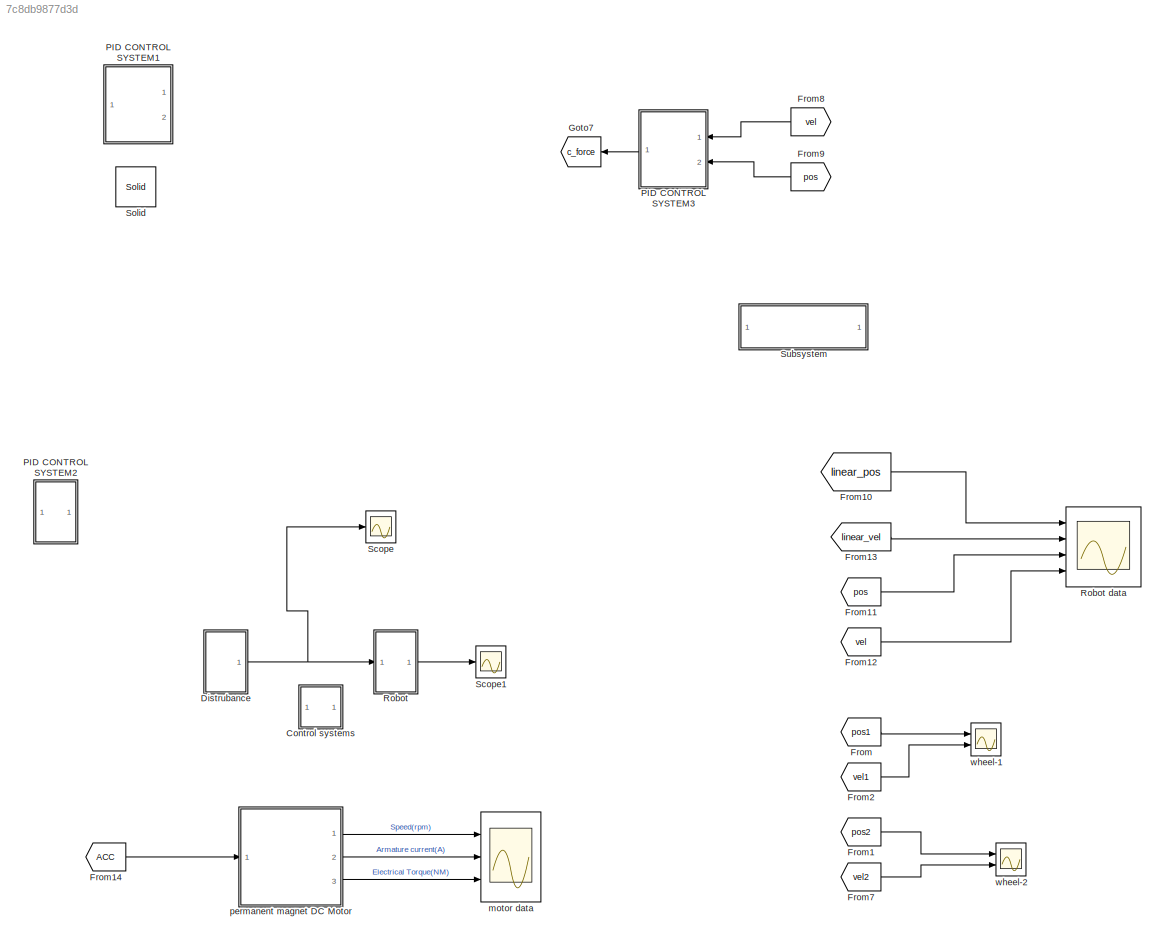
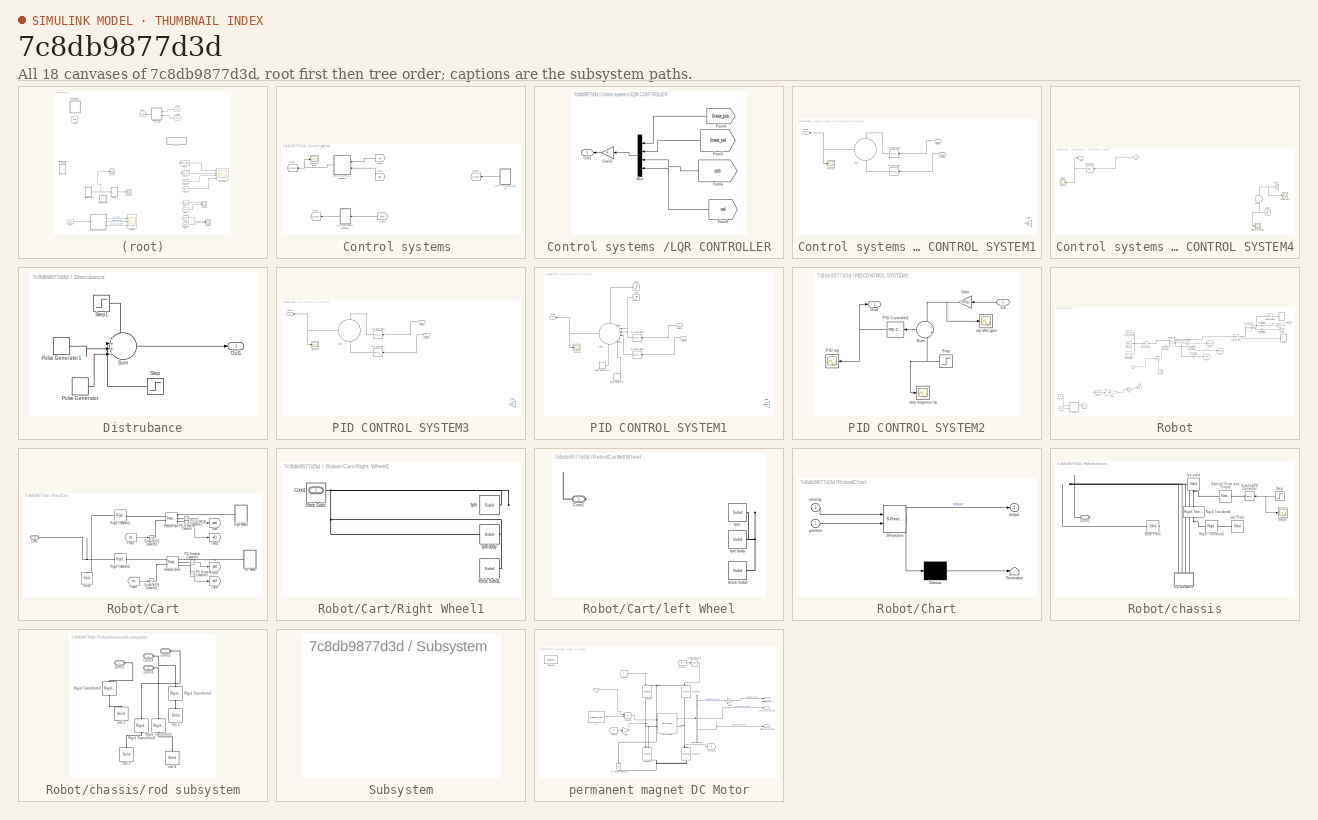
[diagram: thumbnail index - all 18 canvases of the model, root first then tree order]
MODEL slx_7c8db9877d3d
KIND model
CONFIG AbsTol = auto
CONFIG FixedStep = 2*10^-5
CONFIG MaxStep = auto
CONFIG MinStep = auto
CONFIG RelTol = 1e-3
CONFIG SampleTimeConstraint = Unconstrained
CONFIG Solver = VariableStepAuto
CONFIG SolverMode = Auto
CONFIG SolverName = VariableStepAuto
CONFIG StartTime = 0.0
CONFIG StopTime = 10
BLOCK [SubSystem] Control systems 
  Ports = []
  RequestExecContextInheritance = off
  Variant = off
BLOCK [From] Control systems /From1
  Commented = on
  GotoTag = vel
  TagVisibility = global
BLOCK [From] Control systems /From2
  Commented = on
  GotoTag = pos
  TagVisibility = global
BLOCK [From] Control systems /From4
  Commented = on
  GotoTag = pos
  TagVisibility = global
BLOCK [Goto] Control systems /Goto1
  Commented = on
  GotoTag = c_force
  TagVisibility = global
BLOCK [Goto] Control systems /Goto3
  Commented = on
  GotoTag = c_force
  TagVisibility = global
BLOCK [Goto] Control systems /Goto6
  GotoTag = c_force
  TagVisibility = global
BLOCK [SubSystem] Control systems /LQR CONTROLLER
  Ports = [0, 1]
  RequestExecContextInheritance = off
  Variant = off
BLOCK [From] Control systems /LQR CONTROLLER/From4
  GotoTag = linear_pos
  TagVisibility = global
BLOCK [From] Control systems /LQR CONTROLLER/From5
  GotoTag = linear_vel
  TagVisibility = global
BLOCK [From] Control systems /LQR CONTROLLER/From6
  GotoTag = pos
  TagVisibility = global
BLOCK [From] Control systems /LQR CONTROLLER/From8
  GotoTag = vel
  TagVisibility = global
BLOCK [Gain] Control systems /LQR CONTROLLER/Gain2
  Gain = K
  Multiplication = Matrix(K*u)
  OutDataTypeStr = Inherit: Inherit via internal rule
  ParamDataTypeStr = Inherit: Inherit via internal rule
  SaturateOnIntegerOverflow = off
BLOCK [Mux] Control systems /LQR CONTROLLER/Mux
  DisplayOption = bar
  Ports = [4, 1]
BLOCK [Outport] Control systems /LQR CONTROLLER/Out1
  IconDisplay = Port number
BLOCK [SubSystem] Control systems /PID CONTROL SYSTEM1
  Commented = on
  Ports = [2, 1]
  RequestExecContextInheritance = off
  Variant = off
BLOCK [Scope] Control systems /PID CONTROL SYSTEM1/	PID o//p
  Ports = [1]
  ScopeSpecificationString = Simulink.scopes.TimeScopeBlockCfg('CurrentConfiguration', extmgr.ConfigurationSet(extmgr.Configuration('Core','General UI',true),extmgr.Configuration('Core','Source UI',true),extmgr.Configuration('Sources','WiredSimulink',true),extmgr.Configuration('Visuals','Time Domain',true,'SerializedDisplays',{struct('MinYLimReal','-3135.24324','MaxYLimReal','3138.49141','YLabelReal','','MinYLimMag','  0.0000...<+1368ch>  <repeated x5 — deduplicated; at blocks: PID o/p>
BLOCK [Gain] Control systems /PID CONTROL SYSTEM1/Gain
  Commented = on
  Gain = 180/pi
  OutDataTypeStr = Inherit: Inherit via internal rule
  ParamDataTypeStr = Inherit: Inherit via internal rule
  SaturateOnIntegerOverflow = off
BLOCK [Reference] Control systems /PID CONTROL SYSTEM1/PID Controller1  REF=simulink/Continuous/PID Controller
  Ports = [1, 1]
  SourceBlock = simulink/Continuous/PID Controller
  SourceType = PID 1dof
BLOCK [Reference] Control systems /PID CONTROL SYSTEM1/PID Controller2  REF=simulink/Continuous/PID Controller
  Ports = [1, 1]
  SourceBlock = simulink/Continuous/PID Controller
  SourceType = PID 1dof
BLOCK [Sum] Control systems /PID CONTROL SYSTEM1/Sum
  IconShape = round
  InputSameDT = off
  OutDataTypeStr = Inherit: Inherit via internal rule
  Ports = [2, 1]
  SaturateOnIntegerOverflow = off
BLOCK [Outport] Control systems /PID CONTROL SYSTEM1/force
  IconDisplay = Port number
BLOCK [Inport] Control systems /PID CONTROL SYSTEM1/position
  IconDisplay = Port number
  Port = 2
BLOCK [Inport] Control systems /PID CONTROL SYSTEM1/velocity
  IconDisplay = Port number
BLOCK [SubSystem] Control systems /PID CONTROL SYSTEM4
  Commented = on
  Ports = [1, 1]
  RequestExecContextInheritance = off
  Variant = off
BLOCK [Scope] Control systems /PID CONTROL SYSTEM4/	PID o//p
  Ports = [1]
BLOCK [Gain] Control systems /PID CONTROL SYSTEM4/Gain1
  Commented = on
  Gain = 180/pi
  OutDataTypeStr = Inherit: Inherit via internal rule
  ParamDataTypeStr = Inherit: Inherit via internal rule
  SaturateOnIntegerOverflow = off
BLOCK [Inport] Control systems /PID CONTROL SYSTEM4/In1
  IconDisplay = Port number
BLOCK [Outport] Control systems /PID CONTROL SYSTEM4/Out1
  IconDisplay = Port number
BLOCK [Reference] Control systems /PID CONTROL SYSTEM4/PID Controller1  REF=simulink/Continuous/PID Controller
  Ports = [1, 1]
  SourceBlock = simulink/Continuous/PID Controller
  SourceType = PID 1dof
BLOCK [Step] Control systems /PID CONTROL SYSTEM4/Step1
  After = 0
  Before = 1
  Commented = on
  SampleTime = 0
  Time = 0.1
BLOCK [Sum] Control systems /PID CONTROL SYSTEM4/Sum1
  Commented = on
  IconShape = round
  InputSameDT = off
  Inputs = -+
  OutDataTypeStr = Inherit: Inherit via internal rule
  Ports = [2, 1]
  SaturateOnIntegerOverflow = off
BLOCK [Scope] Control systems /PID CONTROL SYSTEM4/o//p after gain 1
  Commented = on
  Ports = [1]
  ScopeSpecificationString = C++SS(StrPVP('SaveName','ScopeData2'),StrPVP('LimitDataPoints','on'),StrPVP('DataFormat','Array'),StrPVP('Decimation','1'),StrPVP('BlockParamSampleInput','off'))
BLOCK [Scope] Control systems /PID CONTROL SYSTEM4/step response i//p1
  Commented = on
  Ports = [1]
  ScopeSpecificationString = C++SS(StrPVP('SaveName','ScopeData3'),StrPVP('LimitDataPoints','on'),StrPVP('DataFormat','Array'),StrPVP('Decimation','1'),StrPVP('BlockParamSampleInput','off'))
BLOCK [Scope] Control systems /Scope
  Commented = on
  Ports = [1]
  ScopeSpecificationString = Simulink.scopes.TimeScopeBlockCfg('CurrentConfiguration', extmgr.ConfigurationSet(extmgr.Configuration('Core','General UI',true),extmgr.Configuration('Core','Source UI',true),extmgr.Configuration('Sources','WiredSimulink',true,'DataLoggingVariableName','ScopeData6'),extmgr.Configuration('Visuals','Time Domain',true,'SerializedDisplays',{struct('MinYLimReal','-357156222372.20526','MaxYLimReal','766...<+1515ch>
BLOCK [SubSystem] Distrubance
  Ports = [0, 1]
  RequestExecContextInheritance = off
  Variant = off
BLOCK [Outport] Distrubance/Out1
  IconDisplay = Port number
BLOCK [DiscretePulseGenerator] Distrubance/Pulse Generator
  Amplitude = 1000
  Period = 5
  Ports = [0, 1]
  PulseType = Time based
  PulseWidth = 0.1
BLOCK [DiscretePulseGenerator] Distrubance/Pulse Generator1
  Amplitude = -1000
  Period = 5
  PhaseDelay = 2.5
  Ports = [0, 1]
  PulseType = Time based
  PulseWidth = 0.1
BLOCK [Step] Distrubance/Step
  After = 0
  Before = 10
  SampleTime = 0
  Time = 10
BLOCK [Step] Distrubance/Step1
  After = 10
  SampleTime = 0
  Time = 0.1
BLOCK [Sum] Distrubance/Sum
  IconShape = round
  InputSameDT = off
  Inputs = ++++
  OutDataTypeStr = Inherit: Inherit via internal rule
  Ports = [4, 1]
  SaturateOnIntegerOverflow = off
BLOCK [From] From
  GotoTag = pos1
  TagVisibility = global
BLOCK [From] From1
  GotoTag = pos2
  TagVisibility = global
BLOCK [From] From10
  GotoTag = linear_pos
  TagVisibility = global
BLOCK [From] From11
  GotoTag = pos
  TagVisibility = global
BLOCK [From] From12
  GotoTag = vel
  TagVisibility = global
BLOCK [From] From13
  GotoTag = linear_vel
  TagVisibility = global
BLOCK [From] From14
  GotoTag = ACC
  TagVisibility = global
BLOCK [From] From2
  GotoTag = vel1
  TagVisibility = global
BLOCK [From] From7
  GotoTag = vel2
  TagVisibility = global
BLOCK [From] From8
  Commented = on
  GotoTag = vel
BLOCK [From] From9
  Commented = on
  GotoTag = pos
BLOCK [Goto] Goto7
  Commented = on
  GotoTag = c_force
BLOCK [SubSystem] PID CONTROL SYSTEM1
  Commented = on
  Ports = [2, 1]
  RequestExecContextInheritance = off
  Variant = off
BLOCK [Scope] PID CONTROL SYSTEM1/	PID o//p
  Ports = [1]
BLOCK [Gain] PID CONTROL SYSTEM1/Gain
  Gain = 180/pi
  OutDataTypeStr = Inherit: Inherit via internal rule
  ParamDataTypeStr = Inherit: Inherit via internal rule
  SaturateOnIntegerOverflow = off
BLOCK [Reference] PID CONTROL SYSTEM1/PID Controller1  REF=simulink/Continuous/PID Controller
  Ports = [1, 1]
  SourceBlock = simulink/Continuous/PID Controller
  SourceType = PID 1dof
BLOCK [Reference] PID CONTROL SYSTEM1/PID Controller2  REF=simulink/Continuous/PID Controller
  Ports = [1, 1]
  SourceBlock = simulink/Continuous/PID Controller
  SourceType = PID 1dof
BLOCK [DiscretePulseGenerator] PID CONTROL SYSTEM1/Pulse Generator
  Amplitude = 1000
  Period = 10
  Ports = [0, 1]
  PulseType = Time based
  PulseWidth = 50
BLOCK [DiscretePulseGenerator] PID CONTROL SYSTEM1/Pulse Generator1
  Amplitude = -1000
  Period = 10
  PhaseDelay = 0.5
  Ports = [0, 1]
  PulseType = Time based
  PulseWidth = 50
BLOCK [Step] PID CONTROL SYSTEM1/Step
  After = 100
  SampleTime = 0
  Time = 0.5
BLOCK [Step] PID CONTROL SYSTEM1/Step1
  After = 0
  Before = 100
  SampleTime = 0
  Time = 0.1
BLOCK [Sum] PID CONTROL SYSTEM1/Sum
  IconShape = round
  InputSameDT = off
  Inputs = ++--++
  OutDataTypeStr = Inherit: Inherit via internal rule
  Ports = [6, 1]
  SaturateOnIntegerOverflow = off
BLOCK [Outport] PID CONTROL SYSTEM1/force
  IconDisplay = Port number
BLOCK [Inport] PID CONTROL SYSTEM1/position
  IconDisplay = Port number
  Port = 2
BLOCK [Inport] PID CONTROL SYSTEM1/velocity
  IconDisplay = Port number
BLOCK [SubSystem] PID CONTROL SYSTEM2
  Commented = on
  Ports = [1, 1]
  RequestExecContextInheritance = off
  Variant = off
BLOCK [Scope] PID CONTROL SYSTEM2/	PID o//p
  Ports = [1]
BLOCK [Gain] PID CONTROL SYSTEM2/Gain
  Gain = 180/pi
  OutDataTypeStr = Inherit: Inherit via internal rule
  ParamDataTypeStr = Inherit: Inherit via internal rule
  SaturateOnIntegerOverflow = off
BLOCK [Inport] PID CONTROL SYSTEM2/In1
  IconDisplay = Port number
BLOCK [Outport] PID CONTROL SYSTEM2/Out1
  IconDisplay = Port number
BLOCK [Reference] PID CONTROL SYSTEM2/PID Controller1  REF=simulink/Continuous/PID Controller
  Ports = [1, 1]
  SourceBlock = simulink/Continuous/PID Controller
  SourceType = PID 1dof
BLOCK [Step] PID CONTROL SYSTEM2/Step
  After = 0
  Before = 1
  SampleTime = 0
  Time = 0.1
BLOCK [Sum] PID CONTROL SYSTEM2/Sum
  IconShape = round
  InputSameDT = off
  Inputs = -+
  OutDataTypeStr = Inherit: Inherit via internal rule
  Ports = [2, 1]
  SaturateOnIntegerOverflow = off
BLOCK [Scope] PID CONTROL SYSTEM2/o//p after gain 
  Ports = [1]
  ScopeSpecificationString = Simulink.scopes.TimeScopeBlockCfg('CurrentConfiguration', extmgr.ConfigurationSet(extmgr.Configuration('Core','General UI',true),extmgr.Configuration('Core','Source UI',true),extmgr.Configuration('Sources','WiredSimulink',true,'DataLoggingVariableName','ScopeData2'),extmgr.Configuration('Visuals','Time Domain',true,'SerializedDisplays',{struct('MinYLimReal','-151.46736','MaxYLimReal','16.82971','Y...<+1404ch>
BLOCK [Scope] PID CONTROL SYSTEM2/step response i//p
  Ports = [1]
  ScopeSpecificationString = Simulink.scopes.TimeScopeBlockCfg('CurrentConfiguration', extmgr.ConfigurationSet(extmgr.Configuration('Core','General UI',true),extmgr.Configuration('Core','Source UI',true),extmgr.Configuration('Sources','WiredSimulink',true,'DataLoggingVariableName','ScopeData3'),extmgr.Configuration('Visuals','Time Domain',true,'SerializedDisplays',{struct('MinYLimReal','-0.125','MaxYLimReal','1.125','YLabelRe...<+1351ch>
BLOCK [SubSystem] PID CONTROL SYSTEM3
  Commented = on
  Ports = [2, 1]
  RequestExecContextInheritance = off
  Variant = off
BLOCK [Scope] PID CONTROL SYSTEM3/	PID o//p
  Ports = [1]
BLOCK [Gain] PID CONTROL SYSTEM3/Gain
  Commented = on
  Gain = 180/pi
  OutDataTypeStr = Inherit: Inherit via internal rule
  ParamDataTypeStr = Inherit: Inherit via internal rule
  SaturateOnIntegerOverflow = off
BLOCK [Reference] PID CONTROL SYSTEM3/PID Controller1  REF=simulink/Continuous/PID Controller
  Ports = [1, 1]
  SourceBlock = simulink/Continuous/PID Controller
  SourceType = PID 1dof
BLOCK [Reference] PID CONTROL SYSTEM3/PID Controller2  REF=simulink/Continuous/PID Controller
  Ports = [1, 1]
  SourceBlock = simulink/Continuous/PID Controller
  SourceType = PID 1dof
BLOCK [Sum] PID CONTROL SYSTEM3/Sum
  IconShape = round
  InputSameDT = off
  OutDataTypeStr = Inherit: Inherit via internal rule
  Ports = [2, 1]
  SaturateOnIntegerOverflow = off
BLOCK [Outport] PID CONTROL SYSTEM3/force
  IconDisplay = Port number
BLOCK [Inport] PID CONTROL SYSTEM3/position
  IconDisplay = Port number
  Port = 2
BLOCK [Inport] PID CONTROL SYSTEM3/velocity
  IconDisplay = Port number
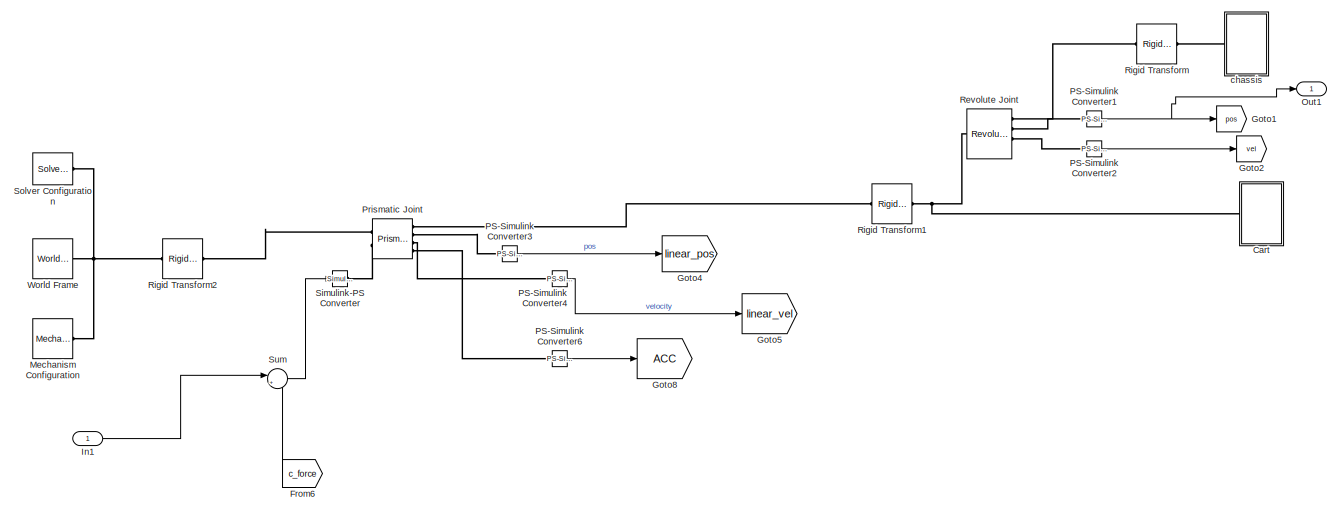
[diagram: Robot - part 1/2, top center region]
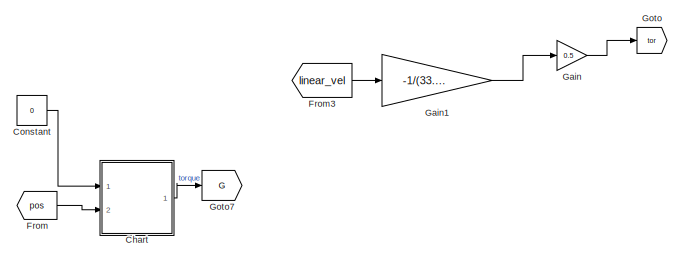
[diagram: Robot - part 2/2, bottom left region]
BLOCK [SubSystem] Robot
  Ports = [1, 1]
  RequestExecContextInheritance = off
  Variant = off
BLOCK [Scope] Robot data
  NumInputPorts = 4
  Ports = [4]
  ScopeSpecificationString = Simulink.scopes.TimeScopeBlockCfg('CurrentConfiguration', extmgr.ConfigurationSet(extmgr.Configuration('Core','General UI',true),extmgr.Configuration('Core','Source UI',true),extmgr.Configuration('Sources','WiredSimulink',true,'DataLoggingVariableName','ScopeData1','DataLoggingLimitDataPoints',true,'DataLoggingSaveFormat','Array','DataLoggingDecimation','1','DataLoggingDecimateData',true),extmgr.C...<+3537ch>
BLOCK [SubSystem] Robot/Cart
  Ports = [0, 0, 0, 0, 0, 1]
  RequestExecContextInheritance = off
  Variant = off
BLOCK [PMIOPort] Robot/Cart/Conn1
  Port = 1
  Side = Left
BLOCK [From] Robot/Cart/From1
  GotoTag = tor
  TagVisibility = global
BLOCK [From] Robot/Cart/From5
  GotoTag = tor
  TagVisibility = global
BLOCK [Goto] Robot/Cart/Goto
  GotoTag = pos1
  TagVisibility = global
BLOCK [Goto] Robot/Cart/Goto1
  GotoTag = pos2
  TagVisibility = global
BLOCK [Goto] Robot/Cart/Goto2
  GotoTag = vel1
  TagVisibility = global
BLOCK [Goto] Robot/Cart/Goto3
  GotoTag = vel2
  TagVisibility = global
BLOCK [Reference] Robot/Cart/PS-Simulink Converter  REF=nesl_utility/PS-Simulink
Converter
  Ports = [0, 1, 0, 0, 0, 1]
  SourceBlock = nesl_utility/PS-Simulink\nConverter
  SourceType = PS-Simulink\nConverter
BLOCK [Reference] Robot/Cart/PS-Simulink Converter1  REF=nesl_utility/PS-Simulink
Converter
  Ports = [0, 1, 0, 0, 0, 1]
  SourceBlock = nesl_utility/PS-Simulink\nConverter
  SourceType = PS-Simulink\nConverter
BLOCK [Reference] Robot/Cart/PS-Simulink Converter2  REF=nesl_utility/PS-Simulink
Converter
  Ports = [0, 1, 0, 0, 0, 1]
  SourceBlock = nesl_utility/PS-Simulink\nConverter
  SourceType = PS-Simulink\nConverter
BLOCK [Reference] Robot/Cart/PS-Simulink Converter3  REF=nesl_utility/PS-Simulink
Converter
  Ports = [0, 1, 0, 0, 0, 1]
  SourceBlock = nesl_utility/PS-Simulink\nConverter
  SourceType = PS-Simulink\nConverter
BLOCK [Reference] Robot/Cart/Revolute Joint  REF=sm_lib/Joints/Revolute Joint
  Ports = [0, 0, 0, 0, 0, 2, 3]
  SourceBlock = sm_lib/Joints/Revolute Joint
  SourceType = Revolute Joint
BLOCK [Reference] Robot/Cart/Revolute Joint1  REF=sm_lib/Joints/Revolute Joint
  Ports = [0, 0, 0, 0, 0, 2, 3]
  SourceBlock = sm_lib/Joints/Revolute Joint
  SourceType = Revolute Joint
BLOCK [SubSystem] Robot/Cart/Right Wheel1
  Ports = [0, 0, 0, 0, 0, 1]
  RequestExecContextInheritance = off
  Variant = off
BLOCK [Reference] Robot/Cart/Right Wheel1/Brick Solid  REF=sm_lib/Body Elements/Solid
  Ports = [0, 0, 0, 0, 0, 0, 1]
  SourceBlock = sm_lib/Body Elements/Solid
  SourceType = Solid
BLOCK [Reference] Robot/Cart/Right Wheel1/Brick Solid1  REF=sm_lib/Body Elements/Solid
  Ports = [0, 0, 0, 0, 0, 0, 1]
  SourceBlock = sm_lib/Body Elements/Solid
  SourceType = Solid
BLOCK [PMIOPort] Robot/Cart/Right Wheel1/Conn1
  Port = 1
  Side = Left
BLOCK [Reference] Robot/Cart/Right Wheel1/tyre  REF=sm_lib/Body Elements/Solid
  Ports = [0, 0, 0, 0, 0, 0, 1]
  SourceBlock = sm_lib/Body Elements/Solid
  SourceType = Solid
BLOCK [Reference] Robot/Cart/Right Wheel1/tyre body  REF=sm_lib/Body Elements/Solid
  Ports = [0, 0, 0, 0, 0, 0, 1]
  SourceBlock = sm_lib/Body Elements/Solid
  SourceType = Solid
BLOCK [Reference] Robot/Cart/Rigid Transform1  REF=sm_lib/Frames and
Transforms/Rigid
Transform
  Ports = [0, 0, 0, 0, 0, 1, 1]
  SourceBlock = sm_lib/Frames and\nTransforms/Rigid\nTransform
  SourceType = Rigid\nTransform
BLOCK [Reference] Robot/Cart/Rigid Transform2  REF=sm_lib/Frames and
Transforms/Rigid
Transform
  Ports = [0, 0, 0, 0, 0, 1, 1]
  SourceBlock = sm_lib/Frames and\nTransforms/Rigid\nTransform
  SourceType = Rigid\nTransform
BLOCK [Reference] Robot/Cart/Simulink-PS Converter1  REF=nesl_utility/Simulink-PS
Converter
  Ports = [1, 0, 0, 0, 0, 0, 1]
  SourceBlock = nesl_utility/Simulink-PS\nConverter
  SourceType = Simulink-PS\nConverter
BLOCK [Reference] Robot/Cart/Simulink-PS Converter2  REF=nesl_utility/Simulink-PS
Converter
  Ports = [1, 0, 0, 0, 0, 0, 1]
  SourceBlock = nesl_utility/Simulink-PS\nConverter
  SourceType = Simulink-PS\nConverter
BLOCK [Reference] Robot/Cart/Solid1  REF=sm_lib/Body Elements/Solid
  Ports = [0, 0, 0, 0, 0, 0, 1]
  SourceBlock = sm_lib/Body Elements/Solid
  SourceType = Solid
BLOCK [SubSystem] Robot/Cart/left Wheel
  Ports = [0, 0, 0, 0, 0, 1]
  RequestExecContextInheritance = off
  Variant = off
BLOCK [Reference] Robot/Cart/left Wheel/Brick Solid  REF=sm_lib/Body Elements/Solid
  Ports = [0, 0, 0, 0, 0, 0, 1]
  SourceBlock = sm_lib/Body Elements/Solid
  SourceType = Solid
BLOCK [PMIOPort] Robot/Cart/left Wheel/Conn1
  Port = 1
  Side = Left
BLOCK [Reference] Robot/Cart/left Wheel/tyre  REF=sm_lib/Body Elements/Solid
  Ports = [0, 0, 0, 0, 0, 0, 1]
  SourceBlock = sm_lib/Body Elements/Solid
  SourceType = Solid
BLOCK [Reference] Robot/Cart/left Wheel/tyre body  REF=sm_lib/Body Elements/Solid
  Ports = [0, 0, 0, 0, 0, 0, 1]
  SourceBlock = sm_lib/Body Elements/Solid
  SourceType = Solid
BLOCK [SubSystem] Robot/Chart
  ErrorFcn = Stateflow.Translate.translate
  PermitHierarchicalResolution = ExplicitOnly
  Ports = [2, 1]
  RequestExecContextInheritance = off
  SFBlockType = Chart
  TreatAsAtomicUnit = on
  Variant = off
BLOCK [Demux] Robot/Chart/ Demux 
  DisplayOption = bar
  Outputs = 1
  Ports = [1, 1]
BLOCK [S-Function] Robot/Chart/ SFunction 
  EnableBusSupport = on
  FunctionName = sf_sfun
  PortCounts = [2 2]
  Ports = [2, 2]
  SFunctionDeploymentMode = off
  Tag = Stateflow S-Function BALANCING_2016 3
BLOCK [Terminator] Robot/Chart/ Terminator 
BLOCK [Inport] Robot/Chart/position
  IconDisplay = Port number
  Port = 2
BLOCK [Outport] Robot/Chart/torque
  IconDisplay = Port number
BLOCK [Inport] Robot/Chart/velocity
  IconDisplay = Port number
BLOCK [Constant] Robot/Constant
  Value = 0
BLOCK [From] Robot/From
  GotoTag = pos
  TagVisibility = global
BLOCK [From] Robot/From3
  GotoTag = linear_vel
  TagVisibility = global
BLOCK [From] Robot/From6
  GotoTag = c_force
  TagVisibility = global
BLOCK [Gain] Robot/Gain
  Gain = 0.5
  OutDataTypeStr = Inherit: Inherit via internal rule
  ParamDataTypeStr = Inherit: Inherit via internal rule
  SaturateOnIntegerOverflow = off
BLOCK [Gain] Robot/Gain1
  Gain = -1/(33.5*10^-3)
  OutDataTypeStr = Inherit: Inherit via internal rule
  ParamDataTypeStr = Inherit: Inherit via internal rule
  SaturateOnIntegerOverflow = off
BLOCK [Goto] Robot/Goto
  GotoTag = tor
  TagVisibility = global
BLOCK [Goto] Robot/Goto1
  GotoTag = pos
  TagVisibility = global
BLOCK [Goto] Robot/Goto2
  GotoTag = vel
  TagVisibility = global
BLOCK [Goto] Robot/Goto4
  GotoTag = linear_pos
  TagVisibility = global
BLOCK [Goto] Robot/Goto5
  GotoTag = linear_vel
  TagVisibility = global
BLOCK [Goto] Robot/Goto7
  GotoTag = G
  TagVisibility = global
BLOCK [Goto] Robot/Goto8
  GotoTag = ACC
  TagVisibility = global
BLOCK [Inport] Robot/In1
  IconDisplay = Port number
BLOCK [Reference] Robot/Mechanism Configuration  REF=sm_lib/Utilities/Mechanism
Configuration
  Ports = [0, 0, 0, 0, 0, 0, 1]
  SourceBlock = sm_lib/Utilities/Mechanism\nConfiguration
  SourceType = Mechanism\nConfiguration
BLOCK [Outport] Robot/Out1
  IconDisplay = Port number
BLOCK [Reference] Robot/PS-Simulink Converter1  REF=nesl_utility/PS-Simulink
Converter
  Ports = [0, 1, 0, 0, 0, 1]
  SourceBlock = nesl_utility/PS-Simulink\nConverter
  SourceType = PS-Simulink\nConverter
BLOCK [Reference] Robot/PS-Simulink Converter2  REF=nesl_utility/PS-Simulink
Converter
  Ports = [0, 1, 0, 0, 0, 1]
  SourceBlock = nesl_utility/PS-Simulink\nConverter
  SourceType = PS-Simulink\nConverter
BLOCK [Reference] Robot/PS-Simulink Converter3  REF=nesl_utility/PS-Simulink
Converter
  Ports = [0, 1, 0, 0, 0, 1]
  SourceBlock = nesl_utility/PS-Simulink\nConverter
  SourceType = PS-Simulink\nConverter
BLOCK [Reference] Robot/PS-Simulink Converter4  REF=nesl_utility/PS-Simulink
Converter
  Ports = [0, 1, 0, 0, 0, 1]
  SourceBlock = nesl_utility/PS-Simulink\nConverter
  SourceType = PS-Simulink\nConverter
BLOCK [Reference] Robot/PS-Simulink Converter6  REF=nesl_utility/PS-Simulink
Converter
  Ports = [0, 1, 0, 0, 0, 1]
  SourceBlock = nesl_utility/PS-Simulink\nConverter
  SourceType = PS-Simulink\nConverter
BLOCK [Reference] Robot/Prismatic Joint  REF=sm_lib/Joints/Prismatic
Joint
  Ports = [0, 0, 0, 0, 0, 2, 4]
  SourceBlock = sm_lib/Joints/Prismatic\nJoint
  SourceType = Prismatic\nJoint
BLOCK [Reference] Robot/Revolute Joint  REF=sm_lib/Joints/Revolute Joint
  Ports = [0, 0, 0, 0, 0, 1, 4]
  SourceBlock = sm_lib/Joints/Revolute Joint
  SourceType = Revolute Joint
BLOCK [Reference] Robot/Rigid Transform  REF=sm_lib/Frames and
Transforms/Rigid
Transform
  Ports = [0, 0, 0, 0, 0, 1, 1]
  SourceBlock = sm_lib/Frames and\nTransforms/Rigid\nTransform
  SourceType = Rigid\nTransform
BLOCK [Reference] Robot/Rigid Transform1  REF=sm_lib/Frames and
Transforms/Rigid
Transform
  Ports = [0, 0, 0, 0, 0, 1, 1]
  SourceBlock = sm_lib/Frames and\nTransforms/Rigid\nTransform
  SourceType = Rigid\nTransform
BLOCK [Reference] Robot/Rigid Transform2  REF=sm_lib/Frames and
Transforms/Rigid
Transform
  Ports = [0, 0, 0, 0, 0, 1, 1]
  SourceBlock = sm_lib/Frames and\nTransforms/Rigid\nTransform
  SourceType = Rigid\nTransform
BLOCK [Reference] Robot/Simulink-PS Converter  REF=nesl_utility/Simulink-PS
Converter
  Ports = [1, 0, 0, 0, 0, 0, 1]
  SourceBlock = nesl_utility/Simulink-PS\nConverter
  SourceType = Simulink-PS\nConverter
BLOCK [Reference] Robot/Solver Configuration  REF=nesl_utility/Solver
Configuration
  Ports = [0, 0, 0, 0, 0, 0, 1]
  SourceBlock = nesl_utility/Solver\nConfiguration
  SourceType = Solver\nConfiguration
BLOCK [Sum] Robot/Sum
  IconShape = round
  InputSameDT = off
  Inputs = |+-
  OutDataTypeStr = Inherit: Inherit via internal rule
  Ports = [2, 1]
  SaturateOnIntegerOverflow = off
BLOCK [Reference] Robot/World Frame  REF=sm_lib/Frames and
Transforms/World Frame
  Ports = [0, 0, 0, 0, 0, 0, 1]
  SourceBlock = sm_lib/Frames and\nTransforms/World Frame
  SourceType = World Frame
BLOCK [SubSystem] Robot/chassis
  Ports = [0, 0, 0, 0, 0, 1]
  RequestExecContextInheritance = off
  Variant = off
BLOCK [Reference] Robot/chassis/Base Plate  REF=sm_lib/Body Elements/Solid
  Ports = [0, 0, 0, 0, 0, 0, 1]
  SourceBlock = sm_lib/Body Elements/Solid
  SourceType = Solid
BLOCK [PMIOPort] Robot/chassis/Conn1
  Port = 1
  Side = Left
BLOCK [Reference] Robot/chassis/External Force and Torque  REF=sm_lib/Forces and
Torques/External Force
and Torque
  Commented = on
  Ports = [0, 0, 0, 0, 0, 1, 1]
  SourceBlock = sm_lib/Forces and\nTorques/External Force\nand Torque
  SourceType = External Force\nand Torque
BLOCK [Reference] Robot/chassis/Rigid Transform1  REF=sm_lib/Frames and
Transforms/Rigid
Transform
  Ports = [0, 0, 0, 0, 0, 1, 1]
  SourceBlock = sm_lib/Frames and\nTransforms/Rigid\nTransform
  SourceType = Rigid\nTransform
BLOCK [Reference] Robot/chassis/Rigid Transform2  REF=sm_lib/Frames and
Transforms/Rigid
Transform
  Ports = [0, 0, 0, 0, 0, 1, 1]
  SourceBlock = sm_lib/Frames and\nTransforms/Rigid\nTransform
  SourceType = Rigid\nTransform
BLOCK [Scope] Robot/chassis/Scope
  Commented = on
  Ports = [1]
  ScopeSpecificationString = Simulink.scopes.TimeScopeBlockCfg('CurrentConfiguration', extmgr.ConfigurationSet(extmgr.Configuration('Core','General UI',true),extmgr.Configuration('Core','Source UI',true),extmgr.Configuration('Sources','WiredSimulink',true,'DataLoggingVariableName','ScopeData1'),extmgr.Configuration('Visuals','Time Domain',true,'SerializedDisplays',{struct('MinYLimReal','-0.125','MaxYLimReal','1.125','YLabelRe...<+1351ch>
BLOCK [Reference] Robot/chassis/Simulink-PS Converter  REF=nesl_utility/Simulink-PS
Converter
  Commented = on
  Ports = [1, 0, 0, 0, 0, 0, 1]
  SourceBlock = nesl_utility/Simulink-PS\nConverter
  SourceType = Simulink-PS\nConverter
BLOCK [Step] Robot/chassis/Step
  After = 0
  Before = 1
  Commented = on
  SampleTime = 0
  Time = 0.01
BLOCK [Reference] Robot/chassis/mid Plate  REF=sm_lib/Body Elements/Solid
  Ports = [0, 0, 0, 0, 0, 0, 1]
  SourceBlock = sm_lib/Body Elements/Solid
  SourceType = Solid
BLOCK [SubSystem] Robot/chassis/rod subsystem
  Ports = [0, 0, 0, 0, 0, 4]
  RequestExecContextInheritance = off
  Variant = off
BLOCK [PMIOPort] Robot/chassis/rod subsystem/Conn1
  Port = 1
  Side = Left
BLOCK [PMIOPort] Robot/chassis/rod subsystem/Conn2
  Port = 2
  Side = Left
BLOCK [PMIOPort] Robot/chassis/rod subsystem/Conn3
  Port = 3
  Side = Left
BLOCK [PMIOPort] Robot/chassis/rod subsystem/Conn4
  Port = 4
  Side = Left
BLOCK [Reference] Robot/chassis/rod subsystem/Rigid Transform3  REF=sm_lib/Frames and
Transforms/Rigid
Transform
  Ports = [0, 0, 0, 0, 0, 1, 1]
  SourceBlock = sm_lib/Frames and\nTransforms/Rigid\nTransform
  SourceType = Rigid\nTransform
BLOCK [Reference] Robot/chassis/rod subsystem/Rigid Transform4  REF=sm_lib/Frames and
Transforms/Rigid
Transform
  Ports = [0, 0, 0, 0, 0, 1, 1]
  SourceBlock = sm_lib/Frames and\nTransforms/Rigid\nTransform
  SourceType = Rigid\nTransform
BLOCK [Reference] Robot/chassis/rod subsystem/Rigid Transform5  REF=sm_lib/Frames and
Transforms/Rigid
Transform
  Ports = [0, 0, 0, 0, 0, 1, 1]
  SourceBlock = sm_lib/Frames and\nTransforms/Rigid\nTransform
  SourceType = Rigid\nTransform
BLOCK [Reference] Robot/chassis/rod subsystem/Rigid Transform6  REF=sm_lib/Frames and
Transforms/Rigid
Transform
  Ports = [0, 0, 0, 0, 0, 1, 1]
  SourceBlock = sm_lib/Frames and\nTransforms/Rigid\nTransform
  SourceType = Rigid\nTransform
BLOCK [Reference] Robot/chassis/rod subsystem/rod 1  REF=sm_lib/Body Elements/Solid
  Ports = [0, 0, 0, 0, 0, 0, 1]
  SourceBlock = sm_lib/Body Elements/Solid
  SourceType = Solid
BLOCK [Reference] Robot/chassis/rod subsystem/rod 2  REF=sm_lib/Body Elements/Solid
  Ports = [0, 0, 0, 0, 0, 0, 1]
  SourceBlock = sm_lib/Body Elements/Solid
  SourceType = Solid
BLOCK [Reference] Robot/chassis/rod subsystem/rod 3  REF=sm_lib/Body Elements/Solid
  Ports = [0, 0, 0, 0, 0, 0, 1]
  SourceBlock = sm_lib/Body Elements/Solid
  SourceType = Solid
BLOCK [Reference] Robot/chassis/rod subsystem/rod 4  REF=sm_lib/Body Elements/Solid
  Ports = [0, 0, 0, 0, 0, 0, 1]
  SourceBlock = sm_lib/Body Elements/Solid
  SourceType = Solid
BLOCK [Reference] Robot/chassis/top plate  REF=sm_lib/Body Elements/Solid
  Ports = [0, 0, 0, 0, 0, 0, 1]
  SourceBlock = sm_lib/Body Elements/Solid
  SourceType = Solid
BLOCK [Scope] Scope
  Ports = [1]
  ScopeSpecificationString = Simulink.scopes.TimeScopeBlockCfg('CurrentConfiguration', extmgr.ConfigurationSet(extmgr.Configuration('Core','General UI',true),extmgr.Configuration('Core','Source UI',true),extmgr.Configuration('Sources','WiredSimulink',true,'DataLoggingVariableName','ScopeData5'),extmgr.Configuration('Visuals','Time Domain',true,'SerializedDisplays',{struct('MinYLimReal','-1230.00000','MaxYLimReal','1270.00000'...<+1479ch>
BLOCK [Scope] Scope1
  Ports = [1]
  ScopeSpecificationString = C++SS(StrPVP('SaveName','ScopeData1'),StrPVP('LimitDataPoints','on'),StrPVP('DataFormat','Array'),StrPVP('Decimation','1'),StrPVP('BlockParamSampleInput','off'))
BLOCK [Reference] Solid  REF=sm_lib/Body Elements/Solid
  Commented = on
  Ports = [0, 0, 0, 0, 0, 0, 1]
  SourceBlock = sm_lib/Body Elements/Solid
  SourceType = Solid
BLOCK [SubSystem] Subsystem
  Commented = on
  OpenFcn = open_system('sm_lib')
  Ports = []
  RequestExecContextInheritance = off
  ShowPortLabels = none
  Variant = off
BLOCK [Scope] motor data
  NumInputPorts = 3
  Ports = [3]
  ScopeSpecificationString = Simulink.scopes.TimeScopeBlockCfg('CurrentConfiguration', extmgr.ConfigurationSet(extmgr.Configuration('Core','General UI',true),extmgr.Configuration('Core','Source UI',true),extmgr.Configuration('Sources','WiredSimulink',true,'DataLoggingVariableName','ScopeData1'),extmgr.Configuration('Visuals','Time Domain',true,'SerializedDisplays',{struct('MinYLimReal','-49.02382','MaxYLimReal','416.31279','Y...<+3346ch>
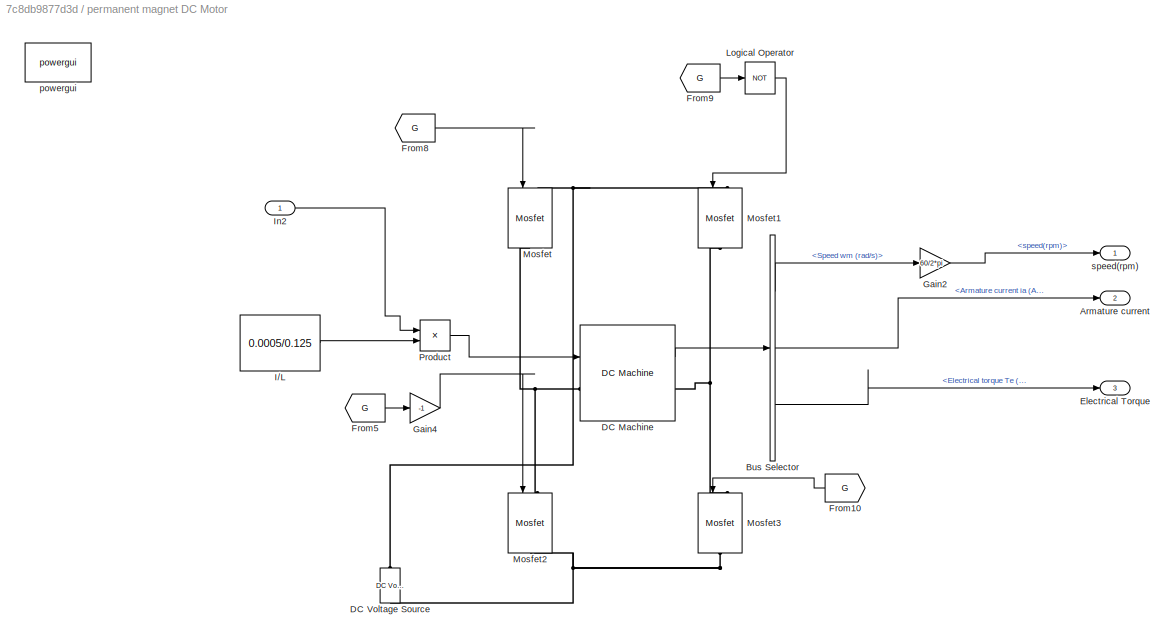
BLOCK [SubSystem] permanent magnet DC Motor
  Ports = [1, 3]
  RequestExecContextInheritance = off
  Variant = off
BLOCK [Outport] permanent magnet DC Motor/Armature current
  IconDisplay = Port number
  Port = 2
BLOCK [BusSelector] permanent magnet DC Motor/Bus Selector
  OutputSignals = Speed wm (rad/s),Armature current ia (A),Electrical torque Te (n m)
  Ports = [1, 3]
BLOCK [Reference] permanent magnet DC Motor/DC Machine  REF=powerlib/Machines/DC Machine
  Ports = [1, 1, 0, 0, 0, 1, 1]
  SourceBlock = powerlib/Machines/DC Machine
  SourceType = DC machine
BLOCK [Reference] permanent magnet DC Motor/DC Voltage Source  REF=powerlib/Electrical
Sources/DC Voltage Source
  Ports = [0, 0, 0, 0, 0, 1, 1]
  SourceBlock = powerlib/Electrical\nSources/DC Voltage Source
  SourceType = DC Voltage Source
BLOCK [Outport] permanent magnet DC Motor/Electrical Torque
  IconDisplay = Port number
  Port = 3
BLOCK [From] permanent magnet DC Motor/From10
  GotoTag = G
  TagVisibility = global
BLOCK [From] permanent magnet DC Motor/From5
  GotoTag = G
  TagVisibility = global
BLOCK [From] permanent magnet DC Motor/From8
  GotoTag = G
  TagVisibility = global
BLOCK [From] permanent magnet DC Motor/From9
  GotoTag = G
  TagVisibility = global
BLOCK [Gain] permanent magnet DC Motor/Gain2
  Gain = 60/2*pi
  OutDataTypeStr = Inherit: Inherit via internal rule
  ParamDataTypeStr = Inherit: Inherit via internal rule
  SaturateOnIntegerOverflow = off
BLOCK [Gain] permanent magnet DC Motor/Gain4
  Gain = -1
  OutDataTypeStr = Inherit: Inherit via internal rule
  ParamDataTypeStr = Inherit: Inherit via internal rule
  SaturateOnIntegerOverflow = off
BLOCK [Constant] permanent magnet DC Motor/I//L
  Value = 0.0005/0.125
BLOCK [Inport] permanent magnet DC Motor/In2
  IconDisplay = Port number
BLOCK [Logic] permanent magnet DC Motor/Logical Operator
  AllPortsSameDT = off
  Operator = NOT
  OutDataTypeStr = boolean
  Ports = [1, 1]
BLOCK [Reference] permanent magnet DC Motor/Mosfet  REF=powerlib/Power
Electronics/Mosfet
  Ports = [1, 0, 0, 0, 0, 1, 1]
  SourceBlock = powerlib/Power\nElectronics/Mosfet
  SourceType = Mosfet
BLOCK [Reference] permanent magnet DC Motor/Mosfet1  REF=powerlib/Power
Electronics/Mosfet
  Ports = [1, 0, 0, 0, 0, 1, 1]
  SourceBlock = powerlib/Power\nElectronics/Mosfet
  SourceType = Mosfet
BLOCK [Reference] permanent magnet DC Motor/Mosfet2  REF=powerlib/Power
Electronics/Mosfet
  Ports = [1, 0, 0, 0, 0, 1, 1]
  SourceBlock = powerlib/Power\nElectronics/Mosfet
  SourceType = Mosfet
BLOCK [Reference] permanent magnet DC Motor/Mosfet3  REF=powerlib/Power
Electronics/Mosfet
  Ports = [1, 0, 0, 0, 0, 1, 1]
  SourceBlock = powerlib/Power\nElectronics/Mosfet
  SourceType = Mosfet
BLOCK [Product] permanent magnet DC Motor/Product
  InputSameDT = off
  OutDataTypeStr = Inherit: Inherit via internal rule
  Ports = [2, 1]
  RndMeth = Floor
  SaturateOnIntegerOverflow = off
BLOCK [Reference] permanent magnet DC Motor/powergui  REF=powerlib/powergui
  Ports = []
  Priority = 1
  SourceBlock = powerlib/powergui
  SourceType = PSB option menu block
  UserDataPersistent = on
BLOCK [Outport] permanent magnet DC Motor/speed(rpm)
  IconDisplay = Port number
BLOCK [Scope] wheel-1
  NumInputPorts = 2
  Ports = [2]
  ScopeSpecificationString = Simulink.scopes.TimeScopeBlockCfg('CurrentConfiguration', extmgr.ConfigurationSet(extmgr.Configuration('Core','General UI',true),extmgr.Configuration('Core','Source UI',true),extmgr.Configuration('Sources','WiredSimulink',true,'DataLoggingVariableName','ScopeData4','DataLoggingLimitDataPoints',true,'DataLoggingSaveFormat','Array','DataLoggingDecimation','1','DataLoggingDecimateData',true),extmgr.C...<+2185ch>
BLOCK [Scope] wheel-2
  NumInputPorts = 2
  Ports = [2]
  ScopeSpecificationString = C++SS(StrPVP('SaveName','ScopeData3'),StrPVP('LimitDataPoints','on'),StrPVP('DataFormat','Array'),StrPVP('Decimation','1'),StrPVP('BlockParamSampleInput','off'))
LINE Control systems /From1:1 -> Control systems /PID CONTROL SYSTEM1:1
LINE Control systems /From2:1 -> Control systems /PID CONTROL SYSTEM1:2
LINE Control systems /From4:1 -> Control systems /PID CONTROL SYSTEM4:1
LINE Control systems /LQR CONTROLLER/From4:1 -> Control systems /LQR CONTROLLER/Mux:1
LINE Control systems /LQR CONTROLLER/From5:1 -> Control systems /LQR CONTROLLER/Mux:2
LINE Control systems /LQR CONTROLLER/From6:1 -> Control systems /LQR CONTROLLER/Mux:3
LINE Control systems /LQR CONTROLLER/From8:1 -> Control systems /LQR CONTROLLER/Mux:4
LINE Control systems /LQR CONTROLLER/Gain2:1 -> Control systems /LQR CONTROLLER/Out1:1
LINE Control systems /LQR CONTROLLER/Mux:1 -> Control systems /LQR CONTROLLER/Gain2:1
LINE Control systems /LQR CONTROLLER:1 -> Control systems /Goto6:1
LINE Control systems /PID CONTROL SYSTEM1/PID Controller1:1 -> Control systems /PID CONTROL SYSTEM1/Sum:1
LINE Control systems /PID CONTROL SYSTEM1/PID Controller2:1 -> Control systems /PID CONTROL SYSTEM1/Sum:2
NET Control systems /PID CONTROL SYSTEM1/Sum:1 -> Control systems /PID CONTROL SYSTEM1/	PID o//p:1, Control systems /PID CONTROL SYSTEM1/force:1
LINE Control systems /PID CONTROL SYSTEM1/position:1 -> Control systems /PID CONTROL SYSTEM1/PID Controller2:1
LINE Control systems /PID CONTROL SYSTEM1/velocity:1 -> Control systems /PID CONTROL SYSTEM1/PID Controller1:1
NET Control systems /PID CONTROL SYSTEM1:1 -> Control systems /Goto3:1, Control systems /Scope:1
NET Control systems /PID CONTROL SYSTEM4/Gain1:1 -> Control systems /PID CONTROL SYSTEM4/Sum1:1, Control systems /PID CONTROL SYSTEM4/o//p after gain 1:1
LINE Control systems /PID CONTROL SYSTEM4/In1:1 -> Control systems /PID CONTROL SYSTEM4/PID Controller1:1
NET Control systems /PID CONTROL SYSTEM4/PID Controller1:1 -> Control systems /PID CONTROL SYSTEM4/	PID o//p:1, Control systems /PID CONTROL SYSTEM4/Out1:1
NET Control systems /PID CONTROL SYSTEM4/Step1:1 -> Control systems /PID CONTROL SYSTEM4/Sum1:2, Control systems /PID CONTROL SYSTEM4/step response i//p1:1
LINE Control systems /PID CONTROL SYSTEM4:1 -> Control systems /Goto1:1
LINE Distrubance/Pulse Generator1:1 -> Distrubance/Sum:3
LINE Distrubance/Pulse Generator:1 -> Distrubance/Sum:4
LINE Distrubance/Step1:1 -> Distrubance/Sum:1
LINE Distrubance/Step:1 -> Distrubance/Sum:2
LINE Distrubance/Sum:1 -> Distrubance/Out1:1
NET Distrubance:1 -> Robot:1, Scope:1
LINE From10:1 -> Robot data:1
LINE From11:1 -> Robot data:3
LINE From12:1 -> Robot data:4
LINE From13:1 -> Robot data:2
LINE From14:1 -> permanent magnet DC Motor:1
LINE From1:1 -> wheel-2:1
LINE From2:1 -> wheel-1:2
LINE From7:1 -> wheel-2:2
LINE From8:1 -> PID CONTROL SYSTEM3:1
LINE From9:1 -> PID CONTROL SYSTEM3:2
LINE From:1 -> wheel-1:1
LINE PID CONTROL SYSTEM1/PID Controller1:1 -> PID CONTROL SYSTEM1/Sum:3
LINE PID CONTROL SYSTEM1/PID Controller2:1 -> PID CONTROL SYSTEM1/Sum:4
LINE PID CONTROL SYSTEM1/Pulse Generator1:1 -> PID CONTROL SYSTEM1/Sum:6
LINE PID CONTROL SYSTEM1/Pulse Generator:1 -> PID CONTROL SYSTEM1/Sum:5
LINE PID CONTROL SYSTEM1/Step1:1 -> PID CONTROL SYSTEM1/Sum:1
LINE PID CONTROL SYSTEM1/Step:1 -> PID CONTROL SYSTEM1/Sum:2
NET PID CONTROL SYSTEM1/Sum:1 -> PID CONTROL SYSTEM1/	PID o//p:1, PID CONTROL SYSTEM1/force:1
LINE PID CONTROL SYSTEM1/position:1 -> PID CONTROL SYSTEM1/PID Controller2:1
LINE PID CONTROL SYSTEM1/velocity:1 -> PID CONTROL SYSTEM1/PID Controller1:1
NET PID CONTROL SYSTEM2/Gain:1 -> PID CONTROL SYSTEM2/Sum:1, PID CONTROL SYSTEM2/o//p after gain :1
LINE PID CONTROL SYSTEM2/In1:1 -> PID CONTROL SYSTEM2/Gain:1
NET PID CONTROL SYSTEM2/PID Controller1:1 -> PID CONTROL SYSTEM2/	PID o//p:1, PID CONTROL SYSTEM2/Out1:1
NET PID CONTROL SYSTEM2/Step:1 -> PID CONTROL SYSTEM2/Sum:2, PID CONTROL SYSTEM2/step response i//p:1
LINE PID CONTROL SYSTEM2/Sum:1 -> PID CONTROL SYSTEM2/PID Controller1:1
LINE PID CONTROL SYSTEM3/PID Controller1:1 -> PID CONTROL SYSTEM3/Sum:1
LINE PID CONTROL SYSTEM3/PID Controller2:1 -> PID CONTROL SYSTEM3/Sum:2
NET PID CONTROL SYSTEM3/Sum:1 -> PID CONTROL SYSTEM3/	PID o//p:1, PID CONTROL SYSTEM3/force:1
LINE PID CONTROL SYSTEM3/position:1 -> PID CONTROL SYSTEM3/PID Controller2:1
LINE PID CONTROL SYSTEM3/velocity:1 -> PID CONTROL SYSTEM3/PID Controller1:1
LINE PID CONTROL SYSTEM3:1 -> Goto7:1
LINE Robot/Cart/From1:1 -> Robot/Cart/Simulink-PS Converter1:1
LINE Robot/Cart/From5:1 -> Robot/Cart/Simulink-PS Converter2:1
LINE Robot/Cart/PS-Simulink Converter1:1 -> Robot/Cart/Goto2:1
LINE Robot/Cart/PS-Simulink Converter2:1 -> Robot/Cart/Goto1:1
LINE Robot/Cart/PS-Simulink Converter3:1 -> Robot/Cart/Goto3:1
LINE Robot/Cart/PS-Simulink Converter:1 -> Robot/Cart/Goto:1
LINE Robot/Chart:1 -> Robot/Goto7:1
LINE Robot/Constant:1 -> Robot/Chart:1
LINE Robot/From3:1 -> Robot/Gain1:1
LINE Robot/From6:1 -> Robot/Sum:2
LINE Robot/From:1 -> Robot/Chart:2
LINE Robot/Gain1:1 -> Robot/Gain:1
LINE Robot/Gain:1 -> Robot/Goto:1
LINE Robot/In1:1 -> Robot/Sum:1
NET Robot/PS-Simulink Converter1:1 -> Robot/Goto1:1, Robot/Out1:1
LINE Robot/PS-Simulink Converter2:1 -> Robot/Goto2:1
LINE Robot/PS-Simulink Converter3:1 -> Robot/Goto4:1
LINE Robot/PS-Simulink Converter4:1 -> Robot/Goto5:1
LINE Robot/PS-Simulink Converter6:1 -> Robot/Goto8:1
LINE Robot/Sum:1 -> Robot/Simulink-PS Converter:1
NET Robot/chassis/Step:1 -> Robot/chassis/Scope:1, Robot/chassis/Simulink-PS Converter:1
LINE Robot:1 -> Scope1:1
LINE permanent magnet DC Motor/Bus Selector:1 -> permanent magnet DC Motor/Gain2:1
LINE permanent magnet DC Motor/Bus Selector:2 -> permanent magnet DC Motor/Armature current:1
LINE permanent magnet DC Motor/Bus Selector:3 -> permanent magnet DC Motor/Electrical Torque:1
LINE permanent magnet DC Motor/DC Machine:1 -> permanent magnet DC Motor/Bus Selector:1
LINE permanent magnet DC Motor/From10:1 -> permanent magnet DC Motor/Mosfet3:1
LINE permanent magnet DC Motor/From5:1 -> permanent magnet DC Motor/Gain4:1
LINE permanent magnet DC Motor/From8:1 -> permanent magnet DC Motor/Mosfet:1
LINE permanent magnet DC Motor/From9:1 -> permanent magnet DC Motor/Logical Operator:1
LINE permanent magnet DC Motor/Gain2:1 -> permanent magnet DC Motor/speed(rpm):1
LINE permanent magnet DC Motor/Gain4:1 -> permanent magnet DC Motor/Mosfet2:1
LINE permanent magnet DC Motor/I//L:1 -> permanent magnet DC Motor/Product:2
LINE permanent magnet DC Motor/In2:1 -> permanent magnet DC Motor/Product:1
LINE permanent magnet DC Motor/Logical Operator:1 -> permanent magnet DC Motor/Mosfet1:1
LINE permanent magnet DC Motor/Product:1 -> permanent magnet DC Motor/DC Machine:1
LINE permanent magnet DC Motor:1 -> motor data:1
LINE permanent magnet DC Motor:2 -> motor data:2
LINE permanent magnet DC Motor:3 -> motor data:3
PNET net1: Robot/Cart/Conn1:RConn1 -- Robot/Cart/Rigid Transform1:LConn1 -- Robot/Cart/Rigid Transform2:LConn1 -- Robot/Cart/Solid1:RConn1
PLINE Robot/Cart/PS-Simulink Converter1:LConn1 -- Robot/Cart/Revolute Joint:RConn3
PLINE Robot/Cart/PS-Simulink Converter2:LConn1 -- Robot/Cart/Revolute Joint1:RConn2
PLINE Robot/Cart/PS-Simulink Converter3:LConn1 -- Robot/Cart/Revolute Joint1:RConn3
PLINE Robot/Cart/PS-Simulink Converter:LConn1 -- Robot/Cart/Revolute Joint:RConn2
PLINE Robot/Cart/Revolute Joint1:LConn1 -- Robot/Cart/Rigid Transform2:RConn1
PLINE Robot/Cart/Revolute Joint1:LConn2 -- Robot/Cart/Simulink-PS Converter1:RConn1
PLINE Robot/Cart/Revolute Joint1:RConn1 -- Robot/Cart/left Wheel:LConn1
PLINE Robot/Cart/Revolute Joint:LConn1 -- Robot/Cart/Rigid Transform1:RConn1
PLINE Robot/Cart/Revolute Joint:LConn2 -- Robot/Cart/Simulink-PS Converter2:RConn1
PLINE Robot/Cart/Revolute Joint:RConn1 -- Robot/Cart/Right Wheel1:LConn1
PNET net2: Robot/Cart/Right Wheel1/Brick Solid1:RConn1 -- Robot/Cart/Right Wheel1/Conn1:RConn1 -- Robot/Cart/Right Wheel1/tyre body:RConn1 -- Robot/Cart/Right Wheel1/tyre:RConn1
PNET net3: Robot/Cart/left Wheel/Brick Solid:RConn1 -- Robot/Cart/left Wheel/Conn1:RConn1 -- Robot/Cart/left Wheel/tyre body:RConn1 -- Robot/Cart/left Wheel/tyre:RConn1
PNET net4: Robot/Cart:LConn1 -- Robot/Revolute Joint:LConn1 -- Robot/Rigid Transform1:RConn1
PNET net5: Robot/Mechanism Configuration:RConn1 -- Robot/Rigid Transform2:LConn1 -- Robot/Solver Configuration:RConn1 -- Robot/World Frame:RConn1
PLINE Robot/PS-Simulink Converter1:LConn1 -- Robot/Revolute Joint:RConn2
PLINE Robot/PS-Simulink Converter2:LConn1 -- Robot/Revolute Joint:RConn3
PLINE Robot/PS-Simulink Converter3:LConn1 -- Robot/Prismatic Joint:RConn2
PLINE Robot/PS-Simulink Converter4:LConn1 -- Robot/Prismatic Joint:RConn3
PLINE Robot/PS-Simulink Converter6:LConn1 -- Robot/Prismatic Joint:RConn4
PLINE Robot/Prismatic Joint:LConn1 -- Robot/Rigid Transform2:RConn1
PLINE Robot/Prismatic Joint:LConn2 -- Robot/Simulink-PS Converter:RConn1
PLINE Robot/Prismatic Joint:RConn1 -- Robot/Rigid Transform1:LConn1
PLINE Robot/Revolute Joint:RConn1 -- Robot/Rigid Transform:LConn1
PLINE Robot/Rigid Transform:RConn1 -- Robot/chassis:LConn1
PNET net6: Robot/chassis/Base Plate:RConn1 -- Robot/chassis/Conn1:RConn1 -- Robot/chassis/Rigid Transform1:LConn1 -- Robot/chassis/Rigid Transform2:LConn1 -- Robot/chassis/rod subsystem:LConn1 -- Robot/chassis/rod subsystem:LConn2 -- Robot/chassis/rod subsystem:LConn3 -- Robot/chassis/rod subsystem:LConn4
PLINE Robot/chassis/External Force and Torque:LConn1 -- Robot/chassis/Simulink-PS Converter:RConn1
PNET net7: Robot/chassis/External Force and Torque:RConn1 -- Robot/chassis/Rigid Transform2:RConn1 -- Robot/chassis/top plate:RConn1
PLINE Robot/chassis/Rigid Transform1:RConn1 -- Robot/chassis/mid Plate:RConn1
PLINE Robot/chassis/rod subsystem/Conn1:RConn1 -- Robot/chassis/rod subsystem/Rigid Transform3:LConn1
PLINE Robot/chassis/rod subsystem/Conn2:RConn1 -- Robot/chassis/rod subsystem/Rigid Transform6:LConn1
PLINE Robot/chassis/rod subsystem/Conn3:RConn1 -- Robot/chassis/rod subsystem/Rigid Transform5:LConn1
PLINE Robot/chassis/rod subsystem/Conn4:RConn1 -- Robot/chassis/rod subsystem/Rigid Transform4:LConn1
PLINE Robot/chassis/rod subsystem/Rigid Transform3:RConn1 -- Robot/chassis/rod subsystem/rod 1:RConn1
PLINE Robot/chassis/rod subsystem/Rigid Transform4:RConn1 -- Robot/chassis/rod subsystem/rod 2:RConn1
PLINE Robot/chassis/rod subsystem/Rigid Transform5:RConn1 -- Robot/chassis/rod subsystem/rod 4:RConn1
PLINE Robot/chassis/rod subsystem/Rigid Transform6:RConn1 -- Robot/chassis/rod subsystem/rod 3:RConn1
PNET net8: permanent magnet DC Motor/DC Machine:LConn1 -- permanent magnet DC Motor/Mosfet2:LConn1 -- permanent magnet DC Motor/Mosfet:RConn1
PNET net9: permanent magnet DC Motor/DC Machine:RConn1 -- permanent magnet DC Motor/Mosfet1:RConn1 -- permanent magnet DC Motor/Mosfet3:LConn1
PNET net10: permanent magnet DC Motor/DC Voltage Source:LConn1 -- permanent magnet DC Motor/Mosfet2:RConn1 -- permanent magnet DC Motor/Mosfet3:RConn1
PNET net11: permanent magnet DC Motor/DC Voltage Source:RConn1 -- permanent magnet DC Motor/Mosfet1:LConn1 -- permanent magnet DC Motor/Mosfet:LConn1
note: NET lines group one-source signal fan-out (src -> all destinations, sorted); 1:1 wires keep LINE; PNET lines group multi-terminal physical nets as a canonical sorted terminal list (undirected conserving connections); 2-terminal nets keep the pairwise PLINE form
CHART Robot/Chart states=3 transitions=5
  STATE_LABEL 'test_position\nentry:\npos = position;'
  STATE_LABEL 'state_1\nduring:\npos = position;\nexit:\ntorque=-1'
  STATE_LABEL 'state_2\nduring:\npos = position;\nexit:\ntorque=1'
